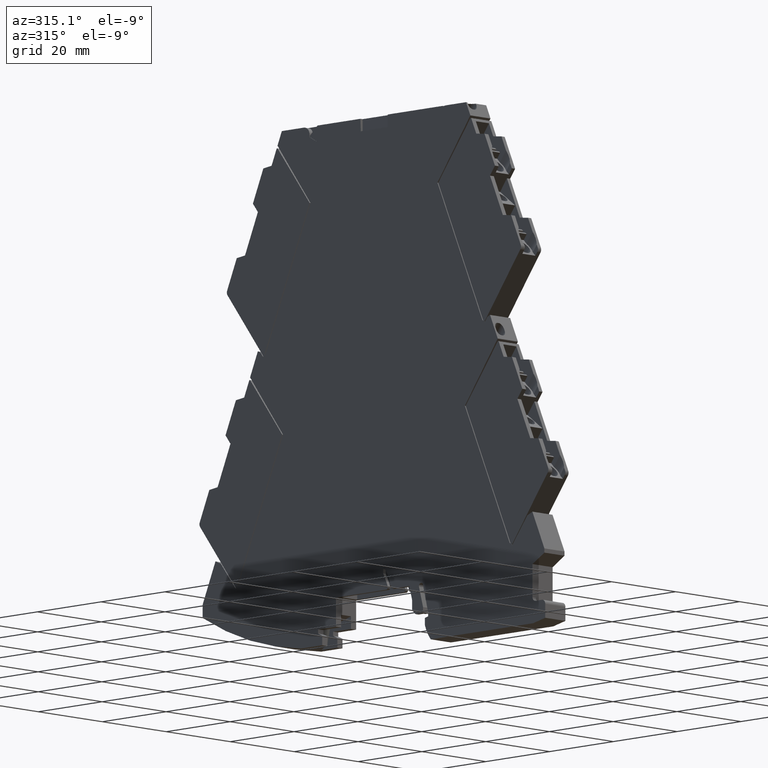
[diagram: clean part render]
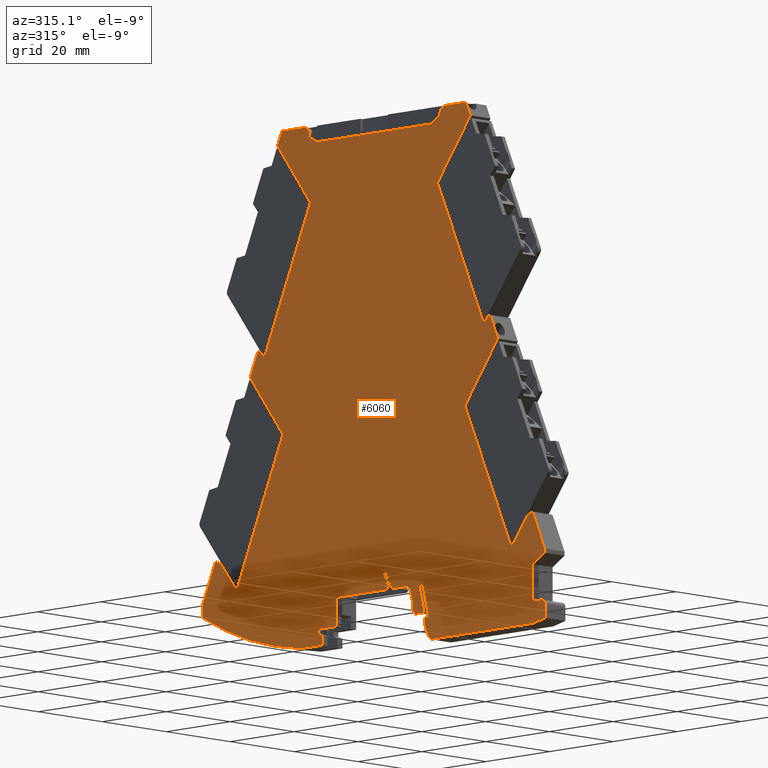
[diagram: same view with one face highlighted and labeled with its STEP entity id]
A machine part, auxiliary view. The second image highlights one B-rep face of the part: STEP entity #6060.
In plain terms, the highlighted planar face has unit normal (-1, -0, 0).
Its self-contained STEP definition (entity closure, byte-faithful):
#10=CARTESIAN_POINT('',(-25.3383086227346,48.277169045282,
-14.7000000000047));
#20=DIRECTION('',(-6.05765437811101E-15,0.,-1.));
#30=DIRECTION('',(-1.,0.,6.05765437811101E-15));
#40=AXIS2_PLACEMENT_3D('',#10,#20,#30);
#50=PLANE('',#40);
#60=CARTESIAN_POINT('',(36.2007235922513,-1.89731703904989E-13,
-14.6999999993497));
#70=DIRECTION('',(-1.11019769824654E-16,1.,-4.92867996990879E-28));
#80=VECTOR('',#70,1.);
#90=LINE('',#60,#80);
#100=CARTESIAN_POINT('',(36.2007235922513,107.906773132974,
-14.6999999993497));
#110=VERTEX_POINT('',#100);
#120=CARTESIAN_POINT('',(36.2007235920387,108.40000000015,
-14.6999999993497));
#130=VERTEX_POINT('',#120);
#140=EDGE_CURVE('',#110,#130,#90,.T.);
#150=ORIENTED_EDGE('',*,*,#140,.T.);
#160=CARTESIAN_POINT('',(1.15118559201051,87.6709129337051,
-14.6999999996607));
#170=DIRECTION('',(-0.866025403785962,-0.499999999997362,
-7.68432686309111E-12));
#180=VECTOR('',#170,1.);
#190=LINE('',#160,#180);
#200=CARTESIAN_POINT('',(33.8507235915967,106.55000000001,
-14.6999999993705));
#210=VERTEX_POINT('',#200);
#220=EDGE_CURVE('',#110,#210,#190,.T.);
#230=ORIENTED_EDGE('',*,*,#220,.F.);
#240=CARTESIAN_POINT('',(1.1511855920105,106.550000000109,
-14.6999999996607));
#250=DIRECTION('',(1.,-3.03140845380314E-12,8.87306795638251E-12));
#260=VECTOR('',#250,1.);
#270=LINE('',#240,#260);
#280=CARTESIAN_POINT('',(-1.84927640837506,106.550000000118,
-14.6999999996873));
#290=VERTEX_POINT('',#280);
#300=EDGE_CURVE('',#290,#210,#270,.T.);
#310=ORIENTED_EDGE('',*,*,#300,.T.);
#320=CARTESIAN_POINT('',(1.1511855920105,104.81768245649,
-14.6999999996607));
#330=DIRECTION('',(0.86602540378293,-0.500000000002612,
7.68429910748884E-12));
#340=VECTOR('',#330,1.);
#350=LINE('',#320,#340);
#360=CARTESIAN_POINT('',(-4.69927640812043,108.195448267173,
-14.6999999997126));
#370=VERTEX_POINT('',#360);
#380=EDGE_CURVE('',#370,#290,#350,.T.);
#390=ORIENTED_EDGE('',*,*,#380,.T.);
#400=CARTESIAN_POINT('',(-4.69927640844843,-1.94272412430663E-13,
-14.6999999997126));
#410=DIRECTION('',(3.03146968213903E-12,1.,2.68987533309253E-23));
#420=VECTOR('',#410,1.);
#430=LINE('',#400,#420);
#440=CARTESIAN_POINT('',(-4.69927640811981,108.400000000278,
-14.6999999997126));
#450=VERTEX_POINT('',#440);
#460=EDGE_CURVE('',#370,#450,#430,.T.);
#470=ORIENTED_EDGE('',*,*,#460,.F.);
#480=CARTESIAN_POINT('',(-6.49927640811981,108.400000000268,
-14.6999999997286));
#490=DIRECTION('',(-8.8791256107606E-12,6.49014673646118E-15,1.));
#500=DIRECTION('',(-1.,-1.11022236331463E-16,-8.8791256107606E-12));
#510=AXIS2_PLACEMENT_3D('',#480,#490,#500);
#520=CIRCLE('',#510,1.8);
#530=CARTESIAN_POINT('',(-6.49927640811436,110.200000000268,
-14.6999999997286));
#540=VERTEX_POINT('',#530);
#550=EDGE_CURVE('',#450,#540,#520,.T.);
#560=ORIENTED_EDGE('',*,*,#550,.F.);
#570=CARTESIAN_POINT('',(1.1511855920105,110.199999999996,
-14.6999999996607));
#580=DIRECTION('',(1.,1.11022302260079E-16,8.87306795638251E-12));
#590=VECTOR('',#580,1.);
#600=LINE('',#570,#590);
#610=CARTESIAN_POINT('',(-12.8970555814496,110.199999999919,
-14.6999999997853));
#620=VERTEX_POINT('',#610);
#630=EDGE_CURVE('',#620,#540,#600,.T.);
#640=ORIENTED_EDGE('',*,*,#630,.T.);
#650=CARTESIAN_POINT('',(-60.8133793021392,-2.00502187135201E-13,
-14.7000000002105));
#660=DIRECTION('',(0.398749068924771,0.91706007438533,
3.53813722846408E-12));
#670=VECTOR('',#660,1.);
#680=LINE('',#650,#670);
#690=CARTESIAN_POINT('',(-14.2517103911261,107.084507232027,
-14.6999999997974));
#700=VERTEX_POINT('',#690);
#710=EDGE_CURVE('',#700,#620,#680,.T.);
#720=ORIENTED_EDGE('',*,*,#710,.T.);
#730=CARTESIAN_POINT('',(64.9866566975938,1.24160697329902E-14,
-14.6999999990943));
#740=DIRECTION('',(-0.594822786743645,0.803856860622912,
-5.27789801480947E-12));
#750=VECTOR('',#740,1.);
#760=LINE('',#730,#750);
#770=CARTESIAN_POINT('',(-3.94907750984252,93.1612979860632,
-14.6999999997059));
#780=VERTEX_POINT('',#770);
#790=EDGE_CURVE('',#780,#700,#760,.T.);
#800=ORIENTED_EDGE('',*,*,#790,.T.);
#810=CARTESIAN_POINT('',(-22.2813318271359,50.9999995197639,
-14.6999999998689));
#820=DIRECTION('',(0.398749068924602,0.917060074385404,
3.53810057950121E-12));
#830=VECTOR('',#820,1.);
#840=LINE('',#810,#830);
#850=CARTESIAN_POINT('',(-17.9964898335526,60.8544614448102,
-14.6999999998306));
#860=VERTEX_POINT('',#850);
#870=EDGE_CURVE('',#860,#780,#840,.T.);
#880=ORIENTED_EDGE('',*,*,#870,.T.);
#890=CARTESIAN_POINT('',(0.943563592012233,75.1268151745857,
-14.6999999996625));
#900=DIRECTION('',(0.798635514844872,0.601815016785445,
7.08632782778937E-12));
#910=VECTOR('',#900,1.);
#920=LINE('',#890,#910);
#930=CARTESIAN_POINT('',(-18.7951253487686,60.2526464262474,
-14.6999999998377));
#940=VERTEX_POINT('',#930);
#950=EDGE_CURVE('',#940,#860,#920,.T.);
#960=ORIENTED_EDGE('',*,*,#950,.T.);
#970=CARTESIAN_POINT('',(27.4383555881092,-1.90704499971024E-13,
-14.6999999994274));
#980=DIRECTION('',(-0.608761422684226,0.79335334514419,
-5.40160933601868E-12));
#990=VECTOR('',#980,1.);
#1000=LINE('',#970,#990);
#1010=CARTESIAN_POINT('',(-19.6188566543151,61.3261539817586,
-14.699999999845));
#1020=VERTEX_POINT('',#1010);
#1030=EDGE_CURVE('',#940,#1020,#1000,.T.);
#1040=ORIENTED_EDGE('',*,*,#1030,.F.);
#1050=CARTESIAN_POINT('',(0.943563592012235,52.8089204484699,
-14.6999999996625));
#1060=DIRECTION('',(0.923879529460593,-0.382683439730116,
8.19766352059228E-12));
#1070=VECTOR('',#1060,1.);
#1080=LINE('',#1050,#1070);
#1090=CARTESIAN_POINT('',(-20.4270229817666,61.6609074427902,
-14.6999999998522));
#1100=VERTEX_POINT('',#1090);
#1110=EDGE_CURVE('',#1100,#1020,#1080,.T.);
#1120=ORIENTED_EDGE('',*,*,#1110,.T.);
#1130=CARTESIAN_POINT('',(-47.2379485891593,-4.30799493391948E-17,
-14.7000000000901));
#1140=DIRECTION('',(0.39874906892458,0.917060074385414,
3.53810057950102E-12));
#1150=VECTOR('',#1140,1.);
#1160=LINE('',#1130,#1150);
#1170=CARTESIAN_POINT('',(-22.8222550002266,56.1522509362226,
-14.6999999998734));
#1180=VERTEX_POINT('',#1170);
#1190=EDGE_CURVE('',#1180,#1100,#1160,.T.);
#1200=ORIENTED_EDGE('',*,*,#1190,.T.);
#1210=CARTESIAN_POINT('',(-22.8222550002266,-1.96284421315771E-13,
-14.6999999998734));
#1220=DIRECTION('',(-3.69141078538322E-41,1.,4.92212777642609E-28));
#1230=VECTOR('',#1220,1.);
#1240=LINE('',#1210,#1230);
#1250=CARTESIAN_POINT('',(-22.8222550002266,56.0447007672601,
-14.6999999998734));
#1260=VERTEX_POINT('',#1250);
#1270=EDGE_CURVE('',#1260,#1180,#1240,.T.);
#1280=ORIENTED_EDGE('',*,*,#1270,.T.);
#1290=CARTESIAN_POINT('',(18.6486420283348,7.27163407851774E-15,
-14.6999999995054));
#1300=DIRECTION('',(-0.594822786743645,0.803856860622912,
-5.27789801480947E-12));
#1310=VECTOR('',#1300,1.);
#1320=LINE('',#1290,#1310);
#1330=CARTESIAN_POINT('',(-12.5490777099876,42.1612984679579,
-14.6999999997823));
#1340=VERTEX_POINT('',#1330);
#1350=EDGE_CURVE('',#1340,#1260,#1320,.T.);
#1360=ORIENTED_EDGE('',*,*,#1350,.T.);
#1370=CARTESIAN_POINT('',(-30.881332028242,1.77282783227625E-15,
-14.6999999999449));
#1380=DIRECTION('',(0.398749068924602,0.917060074385404,
3.53810057950121E-12));
#1390=VECTOR('',#1380,1.);
#1400=LINE('',#1370,#1390);
#1410=CARTESIAN_POINT('',(-26.5964900346587,9.85446192504636,
-14.6999999999069));
#1420=VERTEX_POINT('',#1410);
#1430=EDGE_CURVE('',#1420,#1340,#1400,.T.);
#1440=ORIENTED_EDGE('',*,*,#1430,.T.);
#1450=CARTESIAN_POINT('',(0.943563592012237,30.6073805311242,
-14.6999999996625));
#1460=DIRECTION('',(0.798635514844872,0.601815016785445,
7.08632782778937E-12));
#1470=VECTOR('',#1460,1.);
#1480=LINE('',#1450,#1470);
#1490=CARTESIAN_POINT('',(-27.3951255491828,9.25264690850264,
-14.699999999914));
#1500=VERTEX_POINT('',#1490);
#1510=EDGE_CURVE('',#1500,#1420,#1480,.T.);
#1520=ORIENTED_EDGE('',*,*,#1510,.T.);
#1530=CARTESIAN_POINT('',(-20.2953199832388,-1.96003881575544E-13,
-14.699999999851));
#1540=DIRECTION('',(-0.608761422684226,0.79335334514419,
-5.40160933601868E-12));
#1550=VECTOR('',#1540,1.);
#1560=LINE('',#1530,#1550);
#1570=CARTESIAN_POINT('',(-32.099129865832,15.3830247891033,
-14.6999999999557));
#1580=VERTEX_POINT('',#1570);
#1590=EDGE_CURVE('',#1500,#1580,#1560,.T.);
#1600=ORIENTED_EDGE('',*,*,#1590,.F.);
#1610=CARTESIAN_POINT('',(0.94356359201224,1.69629271292179,
-14.6999999996625));
#1620=DIRECTION('',(0.923879529460592,-0.382683439730119,
8.19763576501666E-12));
#1630=VECTOR('',#1620,1.);
#1640=LINE('',#1610,#1630);
#1650=CARTESIAN_POINT('',(-33.7154625217472,16.0525317115858,
-14.6999999999701));
#1660=VERTEX_POINT('',#1650);
#1670=EDGE_CURVE('',#1660,#1580,#1640,.T.);
#1680=ORIENTED_EDGE('',*,*,#1670,.T.);
#1690=CARTESIAN_POINT('',(-40.6953019802847,6.83283161587036E-16,
-14.700000000032));
#1700=DIRECTION('',(0.398749069928776,0.917060073948777,
3.5381005884174E-12));
#1710=VECTOR('',#1700,1.);
#1720=LINE('',#1690,#1710);
#1730=CARTESIAN_POINT('',(-37.4826881751927,7.38850589467894,
-14.7000000000035));
#1740=VERTEX_POINT('',#1730);
#1750=EDGE_CURVE('',#1740,#1660,#1720,.T.);
#1760=ORIENTED_EDGE('',*,*,#1750,.T.);
#1770=CARTESIAN_POINT('',(-37.4826881751927,-1.97912019210795E-13,
-14.7000000000035));
#1780=DIRECTION('',(-3.69141078538322E-41,1.,4.92212777642609E-28));
#1790=VECTOR('',#1780,1.);
#1800=LINE('',#1770,#1790);
#1810=CARTESIAN_POINT('',(-37.4826881751927,6.44608521200861,
-14.7000000000035));
#1820=VERTEX_POINT('',#1810);
#1830=EDGE_CURVE('',#1820,#1740,#1800,.T.);
#1840=ORIENTED_EDGE('',*,*,#1830,.T.);
#1850=CARTESIAN_POINT('',(0.943563592012242,-15.7393215897355,
-14.6999999996625));
#1860=DIRECTION('',(-0.866025403784439,0.5,-7.68427478294475E-12));
#1870=VECTOR('',#1860,1.);
#1880=LINE('',#1850,#1870);
#1890=CARTESIAN_POINT('',(-33.7492764080437,4.29059892324941,
-14.6999999999704));
#1900=VERTEX_POINT('',#1890);
#1910=EDGE_CURVE('',#1900,#1820,#1880,.T.);
#1920=ORIENTED_EDGE('',*,*,#1910,.T.);
#1930=CARTESIAN_POINT('',(-33.7492764080437,1.45442931158427E-15,
-14.6999999999704));
#1940=DIRECTION('',(-1.11022302459215E-16,1.,-4.92890469345861E-28));
#1950=VECTOR('',#1940,1.);
#1960=LINE('',#1930,#1950);
#1970=CARTESIAN_POINT('',(-33.7492764080437,-3.05673846836056,
-14.6999999999704));
#1980=VERTEX_POINT('',#1970);
#1990=EDGE_CURVE('',#1980,#1900,#1960,.T.);
#2000=ORIENTED_EDGE('',*,*,#1990,.T.);
#2010=CARTESIAN_POINT('',(-34.7492764080437,-3.05673846836056,
-14.6999999999792));
#2020=DIRECTION('',(8.87912561076062E-12,-6.5458857184369E-15,-1.));
#2030=DIRECTION('',(1.11022302401093E-16,-1.,6.54588571843789E-15));
#2040=AXIS2_PLACEMENT_3D('',#2010,#2020,#2030);
#2050=CIRCLE('',#2040,1.);
#2060=CARTESIAN_POINT('',(-34.7492764080437,-4.05673846836056,
-14.6999999999792));
#2070=VERTEX_POINT('',#2060);
#2080=EDGE_CURVE('',#1980,#2070,#2050,.T.);
#2090=ORIENTED_EDGE('',*,*,#2080,.F.);
#2100=CARTESIAN_POINT('',(0.943563592012241,-4.05673846836056,
-14.6999999996625));
#2110=DIRECTION('',(1.,1.11022302459176E-16,8.87306795638251E-12));
#2120=VECTOR('',#2110,1.);
#2130=LINE('',#2100,#2120);
#2140=CARTESIAN_POINT('',(-36.7492764080437,-4.05673846836056,
-14.699999999997));
#2150=VERTEX_POINT('',#2140);
#2160=EDGE_CURVE('',#2150,#2070,#2130,.T.);
#2170=ORIENTED_EDGE('',*,*,#2160,.T.);
#2180=CARTESIAN_POINT('',(-36.7492764080437,-5.05673846836056,
-14.699999999997));
#2190=DIRECTION('',(8.87912561076062E-12,-6.5458857184369E-15,-1.));
#2200=DIRECTION('',(-1.,-1.11022302459215E-16,-8.87912561076062E-12));
#2210=AXIS2_PLACEMENT_3D('',#2180,#2190,#2200);
#2220=CIRCLE('',#2210,1.);
#2230=CARTESIAN_POINT('',(-37.7492764080437,-5.05673846836056,
-14.7000000000059));
#2240=VERTEX_POINT('',#2230);
#2250=EDGE_CURVE('',#2240,#2150,#2220,.T.);
#2260=ORIENTED_EDGE('',*,*,#2250,.T.);
#2270=CARTESIAN_POINT('',(-37.7492764080437,1.01035023817628E-15,
-14.7000000000059));
#2280=DIRECTION('',(-5.55111512279573E-17,1.,-3.35882182301169E-31));
#2290=VECTOR('',#2280,1.);
#2300=LINE('',#2270,#2290);
#2310=CARTESIAN_POINT('',(-37.7492764080438,-8.19999999999219,
-14.7000000000059));
#2320=VERTEX_POINT('',#2310);
#2330=EDGE_CURVE('',#2320,#2240,#2300,.T.);
#2340=ORIENTED_EDGE('',*,*,#2330,.T.);
#2350=CARTESIAN_POINT('',(0.943563592012242,-16.3458610526358,
-14.6999999996625));
#2360=DIRECTION('',(-0.978549784986748,0.206010481049847,
-8.6827406418862E-12));
#2370=VECTOR('',#2360,1.);
#2380=LINE('',#2350,#2370);
#2390=CARTESIAN_POINT('',(-33.9492764080469,-8.99999999999157,
-14.6999999999721));
#2400=VERTEX_POINT('',#2390);
#2410=EDGE_CURVE('',#2400,#2320,#2380,.T.);
#2420=ORIENTED_EDGE('',*,*,#2410,.T.);
#2430=CARTESIAN_POINT('',(0.943563592012242,-8.99999999999158,
-14.6999999996625));
#2440=DIRECTION('',(-1.,-5.38540795371444E-26,-8.87306795638251E-12));
#2450=VECTOR('',#2440,1.);
#2460=LINE('',#2430,#2450);
#2470=CARTESIAN_POINT('',(-1.8164198256342,-8.99999999999158,
-14.6999999996869));
#2480=VERTEX_POINT('',#2470);
#2490=EDGE_CURVE('',#2480,#2400,#2460,.T.);
#2500=ORIENTED_EDGE('',*,*,#2490,.T.);
#2510=CARTESIAN_POINT('',(-9.09927640804742,-2.89999999999157,
-14.6999999997516));
#2520=DIRECTION('',(-8.87912561076062E-12,6.5458857184369E-15,1.));
#2530=DIRECTION('',(1.,-3.30054472363818E-27,8.87912561076062E-12));
#2540=AXIS2_PLACEMENT_3D('',#2510,#2520,#2530);
#2550=CIRCLE('',#2540,9.49999999999998);
#2560=CARTESIAN_POINT('',(0.000723591952494024,-5.62763633938898,
-14.6999999996708));
#2570=VERTEX_POINT('',#2560);
#2580=EDGE_CURVE('',#2480,#2570,#2550,.T.);
#2590=ORIENTED_EDGE('',*,*,#2580,.F.);
#2600=CARTESIAN_POINT('',(0.000723591952495134,5.20134649346369E-15,
-14.6999999996709));
#2610=DIRECTION('',(5.55111512279573E-17,-1.,3.35882182301258E-31));
#2620=VECTOR('',#2610,1.);
#2630=LINE('',#2600,#2620);
#2640=CARTESIAN_POINT('',(0.000723591952495356,-4.01794919242248,
-14.6999999996709));
#2650=VERTEX_POINT('',#2640);
#2660=EDGE_CURVE('',#2650,#2570,#2630,.T.);
#2670=ORIENTED_EDGE('',*,*,#2660,.T.);
#2680=CARTESIAN_POINT('',(0.943563592012241,-4.27058240903025,
-14.6999999996625));
#2690=DIRECTION('',(0.965925826289068,-0.25881904510252,
8.57073419363129E-12));
#2700=VECTOR('',#2690,1.);
#2710=LINE('',#2680,#2700);
#2720=CARTESIAN_POINT('',(-0.999276408047306,-3.74999999999141,
-14.6999999996798));
#2730=VERTEX_POINT('',#2720);
#2740=EDGE_CURVE('',#2730,#2650,#2710,.T.);
#2750=ORIENTED_EDGE('',*,*,#2740,.T.);
#2760=CARTESIAN_POINT('',(-0.999276408047306,5.09032672511172E-15,
-14.6999999996798));
#2770=DIRECTION('',(1.11022302459215E-16,-1.,4.92890469345861E-28));
#2780=VECTOR('',#2770,1.);
#2790=LINE('',#2760,#2780);
#2800=CARTESIAN_POINT('',(-0.999276408047306,-2.79999999999159,
-14.6999999996798));
#2810=VERTEX_POINT('',#2800);
#2820=EDGE_CURVE('',#2810,#2730,#2790,.T.);
#2830=ORIENTED_EDGE('',*,*,#2820,.T.);
#2840=CARTESIAN_POINT('',(-0.287005759605487,5.16940284750564E-15,
-14.6999999996735));
#2850=DIRECTION('',(-0.246530848359328,-0.969134944580594,
-2.1874656906388E-12));
#2860=VECTOR('',#2850,1.);
#2870=LINE('',#2840,#2860);
#2880=CARTESIAN_POINT('',(0.605938711461556,3.51024505144192,
-14.6999999996655));
#2890=VERTEX_POINT('',#2880);
#2900=EDGE_CURVE('',#2890,#2810,#2870,.T.);
#2910=ORIENTED_EDGE('',*,*,#2900,.T.);
#2920=CARTESIAN_POINT('',(1.23587642543894,3.35000000000835,
-14.6999999996599));
#2930=DIRECTION('',(8.87912561076062E-12,-6.5458857184369E-15,-1.));
#2940=DIRECTION('',(-1.,-1.11022302459215E-16,-8.87912561076062E-12));
#2950=AXIS2_PLACEMENT_3D('',#2920,#2930,#2940);
#2960=CIRCLE('',#2950,0.65);
#2970=CARTESIAN_POINT('',(1.86337090583075,3.18043975384843,
-14.6999999996544));
#2980=VERTEX_POINT('',#2970);
#2990=EDGE_CURVE('',#2890,#2980,#2960,.T.);
#3000=ORIENTED_EDGE('',*,*,#2990,.F.);
#3010=CARTESIAN_POINT('',(1.00395912706452,5.31272547017431E-15,
-14.699999999662));
#3020=DIRECTION('',(0.260861917169191,0.965376123679685,
2.31461590622338E-12));
#3030=VECTOR('',#3020,1.);
#3040=LINE('',#3010,#3030);
#3050=CARTESIAN_POINT('',(0.600723591952492,-1.49226058767279,
-14.6999999996656));
#3060=VERTEX_POINT('',#3050);
#3070=EDGE_CURVE('',#3060,#2980,#3040,.T.);
#3080=ORIENTED_EDGE('',*,*,#3070,.T.);
#3090=CARTESIAN_POINT('',(0.600723591952492,5.26795835447488E-15,
-14.6999999996656));
#3100=DIRECTION('',(-1.11022302459215E-16,1.,-4.92890469345861E-28));
#3110=VECTOR('',#3100,1.);
#3120=LINE('',#3090,#3110);
#3130=CARTESIAN_POINT('',(0.600723591952493,-2.7999999999916,
-14.6999999996656));
#3140=VERTEX_POINT('',#3130);
#3150=EDGE_CURVE('',#3140,#3060,#3120,.T.);
#3160=ORIENTED_EDGE('',*,*,#3150,.T.);
#3170=CARTESIAN_POINT('',(0.943563592012241,-2.7999999999916,
-14.6999999996625));
#3180=DIRECTION('',(-1.,-1.11022302459176E-16,-8.87306795638251E-12));
#3190=VECTOR('',#3180,1.);
#3200=LINE('',#3170,#3190);
#3210=CARTESIAN_POINT('',(3.00072359195798,-2.7999999999916,
-14.6999999996443));
#3220=VERTEX_POINT('',#3210);
#3230=EDGE_CURVE('',#3220,#3140,#3200,.T.);
#3240=ORIENTED_EDGE('',*,*,#3230,.T.);
#3250=CARTESIAN_POINT('',(0.943563592012241,-4.85715999993733,
-14.6999999996625));
#3260=DIRECTION('',(-0.707106781186548,-0.707106781186547,
-6.27413230500433E-12));
#3270=VECTOR('',#3260,1.);
#3280=LINE('',#3250,#3270);
#3290=CARTESIAN_POINT('',(4.00072359195759,-1.79999999999198,
-14.6999999996354));
#3300=VERTEX_POINT('',#3290);
#3310=EDGE_CURVE('',#3300,#3220,#3280,.T.);
#3320=ORIENTED_EDGE('',*,*,#3310,.T.);
#3330=CARTESIAN_POINT('',(4.00072359195759,5.64542556687223E-15,
-14.6999999996354));
#3340=DIRECTION('',(1.11022302459215E-16,-1.,4.92890469345861E-28));
#3350=VECTOR('',#3340,1.);
#3360=LINE('',#3330,#3350);
#3370=CARTESIAN_POINT('',(4.00072359195759,0.400000000008001,
-14.6999999996354));
#3380=VERTEX_POINT('',#3370);
#3390=EDGE_CURVE('',#3380,#3300,#3360,.T.);
#3400=ORIENTED_EDGE('',*,*,#3390,.T.);
#3410=CARTESIAN_POINT('',(3.89263642850876,5.63342575502431E-15,
-14.6999999996364));
#3420=DIRECTION('',(-0.260861917169192,-0.965376123679685,
-2.31461590622339E-12));
#3430=VECTOR('',#3420,1.);
#3440=LINE('',#3410,#3430);
#3450=CARTESIAN_POINT('',(4.89244269039266,3.7000000000082,
-14.6999999996275));
#3460=VERTEX_POINT('',#3450);
#3470=EDGE_CURVE('',#3460,#3380,#3440,.T.);
#3480=ORIENTED_EDGE('',*,*,#3470,.T.);
#3490=CARTESIAN_POINT('',(0.94356359201224,3.7000000000082,
-14.6999999996625));
#3500=DIRECTION('',(-1.,-1.11022302459176E-16,-8.87306795638251E-12));
#3510=VECTOR('',#3500,1.);
#3520=LINE('',#3490,#3510);
#3530=CARTESIAN_POINT('',(10.3870912508479,3.7000000000082,
-14.700000001461));
#3540=VERTEX_POINT('',#3530);
#3550=EDGE_CURVE('',#3540,#3460,#3520,.T.);
#3560=ORIENTED_EDGE('',*,*,#3550,.T.);
#3570=CARTESIAN_POINT('',(33.5007235919578,-3.79999999985617,
-14.6999999993737));
#3580=DIRECTION('',(-8.87912561076062E-12,6.49014673646192E-15,1.));
#3590=DIRECTION('',(1.,1.11022302459215E-16,8.87912561076062E-12));
#3600=AXIS2_PLACEMENT_3D('',#3570,#3580,#3590);
#3610=CIRCLE('',#3600,24.3);
#3620=CARTESIAN_POINT('',(12.5143589710902,8.45000000014382,
-14.6999999995599));
#3630=VERTEX_POINT('',#3620);
#3640=EDGE_CURVE('',#3630,#3540,#3610,.T.);
#3650=ORIENTED_EDGE('',*,*,#3640,.T.);
#3660=CARTESIAN_POINT('',(1.15118559201051,8.45000000014382,
-14.6999999996607));
#3670=DIRECTION('',(1.,1.11022302459169E-16,8.87306795638251E-12));
#3680=VECTOR('',#3670,1.);
#3690=LINE('',#3660,#3680);
#3700=CARTESIAN_POINT('',(13.0907235919556,8.45000000014382,
-14.6999999995548));
#3710=VERTEX_POINT('',#3700);
#3720=EDGE_CURVE('',#3630,#3710,#3690,.T.);
#3730=ORIENTED_EDGE('',*,*,#3720,.F.);
#3740=CARTESIAN_POINT('',(13.0907235919556,-1.92297370751636E-13,
-14.6999999995548));
#3750=DIRECTION('',(1.11022302459215E-16,-1.,4.92890468966618E-28));
#3760=VECTOR('',#3750,1.);
#3770=LINE('',#3740,#3760);
#3780=CARTESIAN_POINT('',(13.0907235919556,7.43930157986452,
-14.699999999555));
#3790=VERTEX_POINT('',#3780);
#3800=EDGE_CURVE('',#3710,#3790,#3770,.T.);
#3810=ORIENTED_EDGE('',*,*,#3800,.F.);
#3820=CARTESIAN_POINT('',(33.5007235919578,-3.79999999985617,
-14.6999999993737));
#3830=DIRECTION('',(-8.87912561076062E-12,6.49014673646192E-15,1.));
#3840=DIRECTION('',(1.,1.11022302459215E-16,8.87912561076062E-12));
#3850=AXIS2_PLACEMENT_3D('',#3820,#3830,#3840);
#3860=CIRCLE('',#3850,23.3);
#3870=CARTESIAN_POINT('',(11.6821030178929,4.37543859663468,
-14.6999999995673));
#3880=VERTEX_POINT('',#3870);
#3890=EDGE_CURVE('',#3790,#3880,#3860,.T.);
#3900=ORIENTED_EDGE('',*,*,#3890,.F.);
#3910=CARTESIAN_POINT('',(12.1503137598256,4.20000000014346,
-14.6999999995631));
#3920=DIRECTION('',(-8.87912561076062E-12,6.49014673646192E-15,1.));
#3930=DIRECTION('',(1.,1.11022302459215E-16,8.87912561076062E-12));
#3940=AXIS2_PLACEMENT_3D('',#3910,#3920,#3930);
#3950=CIRCLE('',#3940,0.5);
#3960=CARTESIAN_POINT('',(12.1503137598256,3.70000000014346,
-14.7000000014454));
#3970=VERTEX_POINT('',#3960);
#3980=EDGE_CURVE('',#3880,#3970,#3950,.T.);
#3990=ORIENTED_EDGE('',*,*,#3980,.F.);
#4000=CARTESIAN_POINT('',(1.15118559201052,3.7000000000082,
-14.700000001543));
#4010=DIRECTION('',(1.,1.11022302459213E-16,8.87912561076062E-12));
#4020=VECTOR('',#4010,1.);
#4030=LINE('',#4000,#4020);
#4040=CARTESIAN_POINT('',(27.9007235919565,3.7000000000082,
-14.6999999994233));
#4050=VERTEX_POINT('',#4040);
#4060=EDGE_CURVE('',#3970,#4050,#4030,.T.);
#4070=ORIENTED_EDGE('',*,*,#4060,.F.);
#4080=CARTESIAN_POINT('',(27.9007235919565,8.29879803048479E-15,
-14.6999999994233));
#4090=DIRECTION('',(-1.11022302459215E-16,1.,-4.92890469345861E-28));
#4100=VECTOR('',#4090,1.);
#4110=LINE('',#4080,#4100);
#4120=CARTESIAN_POINT('',(27.9007235919565,-2.7999999999916,
-14.6999999994233));
#4130=VERTEX_POINT('',#4120);
#4140=EDGE_CURVE('',#4130,#4050,#4110,.T.);
#4150=ORIENTED_EDGE('',*,*,#4140,.T.);
#4160=CARTESIAN_POINT('',(0.943563592012241,-2.7999999999916,
-14.6999999996625));
#4170=DIRECTION('',(-1.,-1.1102230251637E-16,-8.87306795638251E-12));
#4180=VECTOR('',#4170,1.);
#4190=LINE('',#4160,#4180);
#4200=CARTESIAN_POINT('',(33.5007235919562,-2.7999999999916,
-14.6999999993737));
#4210=VERTEX_POINT('',#4200);
#4220=EDGE_CURVE('',#4210,#4130,#4190,.T.);
#4230=ORIENTED_EDGE('',*,*,#4220,.T.);
#4240=CARTESIAN_POINT('',(33.5007235919562,8.92050873325594E-15,
-14.6999999993737));
#4250=DIRECTION('',(-1.11022302459215E-16,1.,-4.92890469345861E-28));
#4260=VECTOR('',#4250,1.);
#4270=LINE('',#4240,#4260);
#4280=CARTESIAN_POINT('',(33.5007235919562,-3.7499999999927,
-14.6999999993737));
#4290=VERTEX_POINT('',#4280);
#4300=EDGE_CURVE('',#4290,#4210,#4270,.T.);
#4310=ORIENTED_EDGE('',*,*,#4300,.T.);
#4320=CARTESIAN_POINT('',(0.943563592012243,-18.9316530357442,
-14.6999999996625));
#4330=DIRECTION('',(0.90630778703665,0.4226182617407,
8.04172507913701E-12));
#4340=VECTOR('',#4330,1.);
#4350=LINE('',#4320,#4340);
#4360=CARTESIAN_POINT('',(32.2007235919562,-4.3561999555942,
-14.6999999993852));
#4370=VERTEX_POINT('',#4360);
#4380=EDGE_CURVE('',#4370,#4290,#4350,.T.);
#4390=ORIENTED_EDGE('',*,*,#4380,.T.);
#4400=CARTESIAN_POINT('',(32.2007235919562,8.77618303439835E-15,
-14.6999999993852));
#4410=DIRECTION('',(-1.11022302459215E-16,1.,-4.92890469345861E-28));
#4420=VECTOR('',#4410,1.);
#4430=LINE('',#4400,#4420);
#4440=CARTESIAN_POINT('',(32.2007235919562,-6.49999999999157,
-14.6999999993852));
#4450=VERTEX_POINT('',#4440);
#4460=EDGE_CURVE('',#4450,#4370,#4430,.T.);
#4470=ORIENTED_EDGE('',*,*,#4460,.T.);
#4480=CARTESIAN_POINT('',(0.943563592012241,-6.49999999999158,
-14.6999999996625));
#4490=DIRECTION('',(-1.,-1.1102230251637E-16,-8.87306795638251E-12));
#4500=VECTOR('',#4490,1.);
#4510=LINE('',#4480,#4500);
#4520=CARTESIAN_POINT('',(38.8654179275983,-6.49999999999157,
-14.6999999993261));
#4530=VERTEX_POINT('',#4520);
#4540=EDGE_CURVE('',#4530,#4450,#4510,.T.);
#4550=ORIENTED_EDGE('',*,*,#4540,.T.);
#4560=CARTESIAN_POINT('',(29.5007235919562,72.9500000000084,
-14.6999999994091));
#4570=DIRECTION('',(-8.87912561076062E-12,6.5458857184369E-15,1.));
#4580=DIRECTION('',(1.,1.11022302459215E-16,8.87912561076062E-12));
#4590=AXIS2_PLACEMENT_3D('',#4560,#4570,#4580);
#4600=CIRCLE('',#4590,80.0000000000001);
#4610=CARTESIAN_POINT('',(69.7507235919569,3.81290792925414,
-14.699999999052));
#4620=VERTEX_POINT('',#4610);
#4630=EDGE_CURVE('',#4530,#4620,#4600,.T.);
#4640=ORIENTED_EDGE('',*,*,#4630,.F.);
#4650=CARTESIAN_POINT('',(69.7507235919569,1.29449753360158E-14,
-14.699999999052));
#4660=DIRECTION('',(1.11022302458579E-16,-1.,4.92890469340215E-28));
#4670=VECTOR('',#4660,1.);
#4680=LINE('',#4650,#4670);
#4690=CARTESIAN_POINT('',(69.7507235919569,6.77539492033612,
-14.699999999052));
#4700=VERTEX_POINT('',#4690);
#4710=EDGE_CURVE('',#4700,#4620,#4680,.T.);
#4720=ORIENTED_EDGE('',*,*,#4710,.T.);
#4730=CARTESIAN_POINT('',(72.6967491485635,1.32720424108694E-14,
-14.6999999990259));
#4740=DIRECTION('',(0.398749068924908,-0.917060074385271,
3.53810057950393E-12));
#4750=VECTOR('',#4740,1.);
#4760=LINE('',#4730,#4750);
#4770=CARTESIAN_POINT('',(65.7169097088167,16.0525317164235,
-14.6999999990878));
#4780=VERTEX_POINT('',#4770);
#4790=EDGE_CURVE('',#4780,#4700,#4760,.T.);
#4800=ORIENTED_EDGE('',*,*,#4790,.T.);
#4810=CARTESIAN_POINT('',(0.943563592012242,-10.7774673304011,
-14.6999999996625));
#4820=DIRECTION('',(0.923879529460591,0.382683439730121,
8.19763576501665E-12));
#4830=VECTOR('',#4820,1.);
#4840=LINE('',#4810,#4830);
#4850=CARTESIAN_POINT('',(64.1005770539132,15.3830247943601,
-14.6999999991021));
#4860=VERTEX_POINT('',#4850);
#4870=EDGE_CURVE('',#4860,#4780,#4840,.T.);
#4880=ORIENTED_EDGE('',*,*,#4870,.T.);
#4890=CARTESIAN_POINT('',(52.2967671672864,-1.87944724875905E-13,
-14.6999999992069));
#4900=DIRECTION('',(-0.608761422684226,-0.793353345144191,
-5.40158158044307E-12));
#4910=VECTOR('',#4900,1.);
#4920=LINE('',#4890,#4910);
#4930=CARTESIAN_POINT('',(59.3965727331644,9.25264690841671,
-14.6999999991439));
#4940=VERTEX_POINT('',#4930);
#4950=EDGE_CURVE('',#4860,#4940,#4920,.T.);
#4960=ORIENTED_EDGE('',*,*,#4950,.F.);
#4970=CARTESIAN_POINT('',(0.943563592012235,53.3001479568458,
-14.6999999996625));
#4980=DIRECTION('',(0.798635514844873,-0.601815016785445,
7.08632782778937E-12));
#4990=VECTOR('',#4980,1.);
#5000=LINE('',#4970,#4990);
#5010=CARTESIAN_POINT('',(58.5979372183868,9.8544619251942,
-14.6999999991503));
#5020=VERTEX_POINT('',#5010);
#5030=EDGE_CURVE('',#5020,#4940,#5000,.T.);
#5040=ORIENTED_EDGE('',*,*,#5030,.T.);
#5050=CARTESIAN_POINT('',(62.8827792119701,1.47837038900938E-10,
-14.6999999991122));
#5060=DIRECTION('',(-0.398749068924602,0.917060074385404,
-3.54298556080956E-12));
#5070=VECTOR('',#5060,1.);
#5080=LINE('',#5050,#5070);
#5090=CARTESIAN_POINT('',(44.5505248937157,42.1612984681058,
-14.6999999992751));
#5100=VERTEX_POINT('',#5090);
#5110=EDGE_CURVE('',#5020,#5100,#5080,.T.);
#5120=ORIENTED_EDGE('',*,*,#5110,.F.);
#5130=CARTESIAN_POINT('',(13.3528051553933,1.47842537707184E-10,
-14.6999999995523));
#5140=DIRECTION('',(0.594822786743645,0.803856860622912,
5.28511446446954E-12));
#5150=VECTOR('',#5140,1.);
#5160=LINE('',#5130,#5150);
#5170=CARTESIAN_POINT('',(54.8237021839289,56.0447007673731,
-14.6999999991838));
#5180=VERTEX_POINT('',#5170);
#5190=EDGE_CURVE('',#5100,#5180,#5160,.T.);
#5200=ORIENTED_EDGE('',*,*,#5190,.F.);
#5210=CARTESIAN_POINT('',(54.8237021839289,-1.87664185135717E-13,
-14.6999999991845));
#5220=DIRECTION('',(3.69141078538322E-41,-1.,-4.92212777642609E-28));
#5230=VECTOR('',#5220,1.);
#5240=LINE('',#5210,#5230);
#5250=CARTESIAN_POINT('',(54.8237021839289,56.1522509364297,
-14.6999999991838));
#5260=VERTEX_POINT('',#5250);
#5270=EDGE_CURVE('',#5260,#5180,#5240,.T.);
#5280=ORIENTED_EDGE('',*,*,#5270,.T.);
#5290=CARTESIAN_POINT('',(79.2393957728874,1.47835222993156E-10,
-14.6999999989669));
#5300=DIRECTION('',(-0.39874906892458,0.917060074385414,
-3.54298556080936E-12));
#5310=VECTOR('',#5300,1.);
#5320=LINE('',#5290,#5310);
#5330=CARTESIAN_POINT('',(52.4284701654947,61.6609074429381,
-14.6999999992051));
#5340=VERTEX_POINT('',#5330);
#5350=EDGE_CURVE('',#5260,#5340,#5320,.T.);
#5360=ORIENTED_EDGE('',*,*,#5350,.F.);
#5370=CARTESIAN_POINT('',(31.0578835917159,52.8089204486178,
-14.699999999395));
#5380=DIRECTION('',(-0.923879529460593,-0.382683439730116,
-8.20882126198977E-12));
#5390=VECTOR('',#5380,1.);
#5400=LINE('',#5370,#5390);
#5410=CARTESIAN_POINT('',(51.6203038380432,61.3261539819064,
-14.6999999992123));
#5420=VERTEX_POINT('',#5410);
#5430=EDGE_CURVE('',#5340,#5420,#5400,.T.);
#5440=ORIENTED_EDGE('',*,*,#5430,.F.);
#5450=CARTESIAN_POINT('',(4.56309159561891,1.47644561573134E-10,
-14.6999999996304));
#5460=DIRECTION('',(0.608761422684226,0.79335334514419,
5.40892894197849E-12));
#5470=VECTOR('',#5460,1.);
#5480=LINE('',#5450,#5470);
#5490=CARTESIAN_POINT('',(50.7965725324967,60.2526464263952,
-14.6999999992196));
#5500=VERTEX_POINT('',#5490);
#5510=EDGE_CURVE('',#5500,#5420,#5480,.T.);
#5520=ORIENTED_EDGE('',*,*,#5510,.T.);
#5530=CARTESIAN_POINT('',(31.0578835917159,75.1268151747335,
-14.699999999395));
#5540=DIRECTION('',(-0.798635514844873,0.601815016785445,
-7.09604227925484E-12));
#5550=VECTOR('',#5540,1.);
#5560=LINE('',#5530,#5550);
#5570=CARTESIAN_POINT('',(49.9979370172807,60.854461444958,
-14.6999999992267));
#5580=VERTEX_POINT('',#5570);
#5590=EDGE_CURVE('',#5500,#5580,#5560,.T.);
#5600=ORIENTED_EDGE('',*,*,#5590,.F.);
#5610=CARTESIAN_POINT('',(54.282779010864,50.9999995199117,
-14.6999999991889));
#5620=DIRECTION('',(-0.398749068924602,0.917060074385404,
-3.54298556080956E-12));
#5630=VECTOR('',#5620,1.);
#5640=LINE('',#5610,#5630);
#5650=CARTESIAN_POINT('',(35.9505246935707,93.1612979862111,
-14.6999999993519));
#5660=VERTEX_POINT('',#5650);
#5670=EDGE_CURVE('',#5580,#5660,#5640,.T.);
#5680=ORIENTED_EDGE('',*,*,#5670,.F.);
#5690=CARTESIAN_POINT('',(-32.9852095138657,1.47847682142838E-10,
-14.699999999964));
#5700=DIRECTION('',(0.594822786743645,0.803856860622912,
5.28511446446954E-12));
#5710=VECTOR('',#5700,1.);
#5720=LINE('',#5690,#5710);
#5730=CARTESIAN_POINT('',(46.2531575748542,107.084507232175,
-14.6999999992605));
#5740=VERTEX_POINT('',#5730);
#5750=EDGE_CURVE('',#5660,#5740,#5720,.T.);
#5760=ORIENTED_EDGE('',*,*,#5750,.F.);
#5770=CARTESIAN_POINT('',(92.8148264858673,1.4763476388597E-10,
-14.6999999988463));
#5780=DIRECTION('',(-0.398749068924771,0.917060074385331,
-3.54294891184971E-12));
#5790=VECTOR('',#5780,1.);
#5800=LINE('',#5770,#5790);
#5810=CARTESIAN_POINT('',(44.8985027653398,110.199999999919,
-14.6999999992725));
#5820=VERTEX_POINT('',#5810);
#5830=EDGE_CURVE('',#5740,#5820,#5800,.T.);
#5840=ORIENTED_EDGE('',*,*,#5830,.F.);
#5850=CARTESIAN_POINT('',(0.943563592012229,110.199999999996,
-14.6999999996625));
#5860=DIRECTION('',(1.,1.11022302260089E-16,8.87306795638251E-12));
#5870=VECTOR('',#5860,1.);
#5880=LINE('',#5850,#5870);
#5890=CARTESIAN_POINT('',(38.0007235920409,110.199999999919,
-14.7000000258242));
#5900=VERTEX_POINT('',#5890);
#5910=EDGE_CURVE('',#5900,#5820,#5880,.T.);
#5920=ORIENTED_EDGE('',*,*,#5910,.T.);
#5930=CARTESIAN_POINT('',(38.0007235920409,110.20000000015,
-14.6999999993337));
#5940=CARTESIAN_POINT('',(37.6847600700366,110.20000000015,
-14.6999999993365));
#5950=CARTESIAN_POINT('',(37.3743560287659,110.116827487964,
-14.6999999993393));
#5960=CARTESIAN_POINT('',(36.827091155316,109.80086396596,
-14.6999999993441));
#5970=CARTESIAN_POINT('',(36.5998596262311,109.573632436875,
-14.6999999993462));
#5980=CARTESIAN_POINT('',(36.2838961042268,109.026367563425,
-14.699999999349));
#5990=CARTESIAN_POINT('',(36.2007235920409,108.715963522154,
-14.6999999993497));
#6000=CARTESIAN_POINT('',(36.2007235920409,108.40000000015,
-14.6999999993497));
#6010=B_SPLINE_CURVE_WITH_KNOTS('',3,(#5930,#5940,#5950,#5960,#5970,
#5980,#5990,#6000),.UNSPECIFIED.,.F.,.F.,(4,2,2,4),(0.,1.,2.,3.),
.UNSPECIFIED.);
#6020=EDGE_CURVE('',#5900,#130,#6010,.T.);
#6030=ORIENTED_EDGE('',*,*,#6020,.F.);
#6040=EDGE_LOOP('',(#6030,#5920,#5840,#5760,#5680,#5600,#5520,#5440,
#5360,#5280,#5200,#5120,#5040,#4960,#4880,#4800,#4720,#4640,#4550,#4470,
#4390,#4310,#4230,#4150,#4070,#3990,#3900,#3810,#3730,#3650,#3560,#3480,
#3400,#3320,#3240,#3160,#3080,#3000,#2910,#2830,#2750,#2670,#2590,#2500,
#2420,#2340,#2260,#2170,#2090,#2000,#1920,#1840,#1760,#1680,#1600,#1520,
#1440,#1360,#1280,#1200,#1120,#1040,#960,#880,#800,#720,#640,#560,#470,
#390,#310,#230,#150));
#6050=FACE_OUTER_BOUND('',#6040,.T.);
#6060=ADVANCED_FACE('',(#6050),#50,.T.);